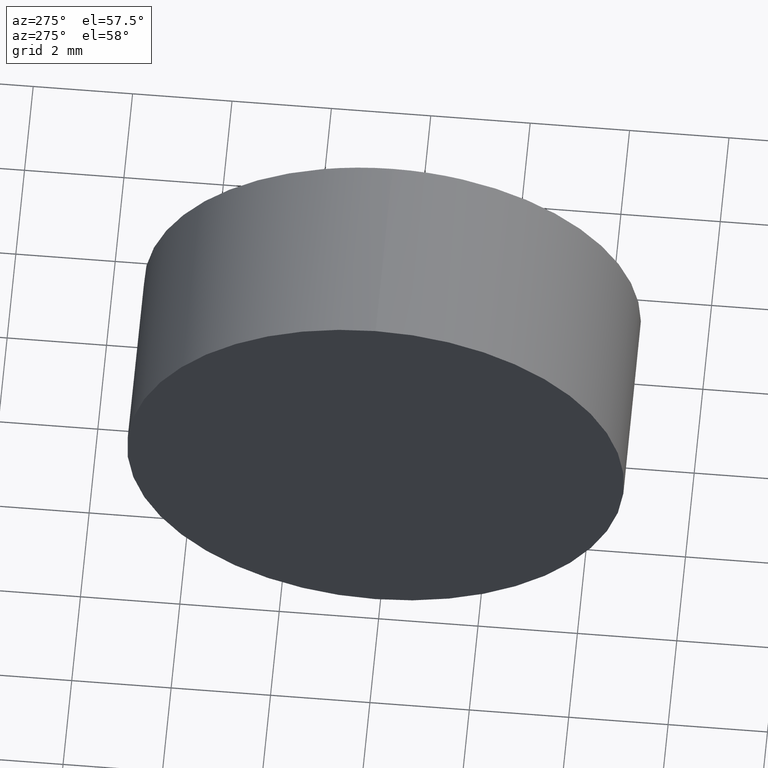
[diagram: clean part render]
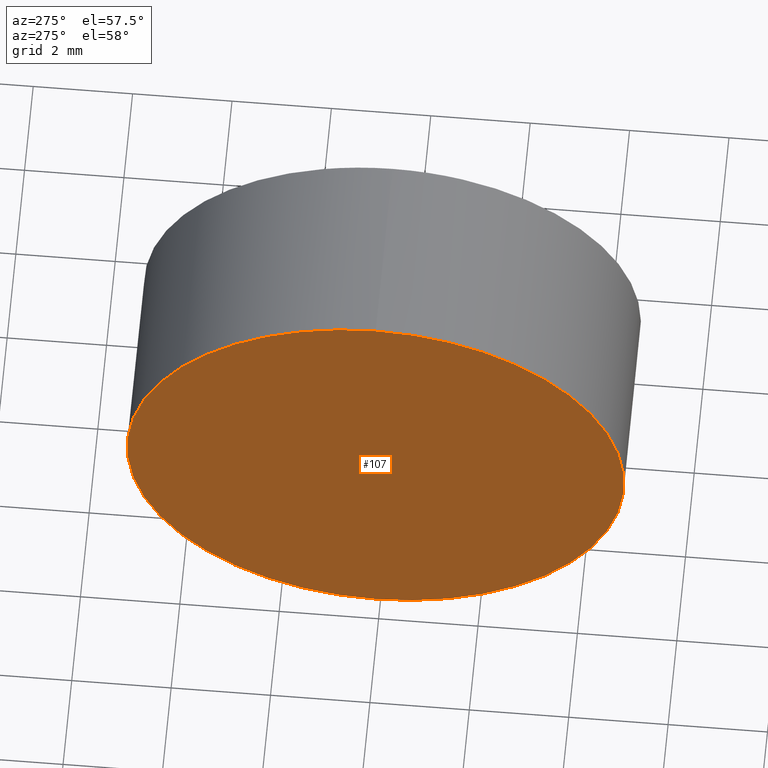
[diagram: same view with one face highlighted and labeled with its STEP entity id]
A machine part, auxiliary view. The second image highlights one B-rep face of the part: STEP entity #107.
In plain terms, the highlighted planar face has unit normal (1, 0, 0).
Its self-contained STEP definition (entity closure, byte-faithful):
#9 = VERTEX_POINT ( 'NONE', #12 ) ;
#12 = CARTESIAN_POINT ( 'NONE',  ( 44.31958549791029600, 26.08904114919495900, -5.000000000000000900 ) ) ;
#19 = EDGE_LOOP ( 'NONE', ( #111, #75 ) ) ;
#21 = AXIS2_PLACEMENT_3D ( 'NONE', #161, #148, #57 ) ;
#26 = CARTESIAN_POINT ( 'NONE',  ( 44.31958549791029600, 26.08904114919495900, 0.0000000000000000000 ) ) ;
#39 = DIRECTION ( 'NONE',  ( 0.0000000000000000000, 0.0000000000000000000, 1.000000000000000000 ) ) ;
#40 = CIRCLE ( 'NONE', #131, 5.000000000000000900 ) ;
#57 = DIRECTION ( 'NONE',  ( 0.0000000000000000000, 0.0000000000000000000, 1.000000000000000000 ) ) ;
#67 = VERTEX_POINT ( 'NONE', #118 ) ;
#72 = CARTESIAN_POINT ( 'NONE',  ( 44.31958549791029600, 26.08904114919495900, 0.0000000000000000000 ) ) ;
#74 = PLANE ( 'NONE',  #96 ) ;
#75 = ORIENTED_EDGE ( 'NONE', *, *, #155, .T. ) ;
#77 = CIRCLE ( 'NONE', #21, 5.000000000000000900 ) ;
#84 = FACE_OUTER_BOUND ( 'NONE', #19, .T. ) ;
#96 = AXIS2_PLACEMENT_3D ( 'NONE', #26, #186, #103 ) ;
#103 = DIRECTION ( 'NONE',  ( 0.0000000000000000000, 0.0000000000000000000, -1.000000000000000000 ) ) ;
#107 = ADVANCED_FACE ( 'NONE', ( #84 ), #74, .F. ) ;
#111 = ORIENTED_EDGE ( 'NONE', *, *, #143, .T. ) ;
#118 = CARTESIAN_POINT ( 'NONE',  ( 44.31958549791029600, 26.08904114919495900, 5.000000000000000900 ) ) ;
#131 = AXIS2_PLACEMENT_3D ( 'NONE', #72, #134, #39 ) ;
#134 = DIRECTION ( 'NONE',  ( -1.000000000000000000, -0.0000000000000000000, -0.0000000000000000000 ) ) ;
#143 = EDGE_CURVE ( 'NONE', #67, #9, #77, .T. ) ;
#148 = DIRECTION ( 'NONE',  ( -1.000000000000000000, -0.0000000000000000000, -0.0000000000000000000 ) ) ;
#155 = EDGE_CURVE ( 'NONE', #9, #67, #40, .T. ) ;
#161 = CARTESIAN_POINT ( 'NONE',  ( 44.31958549791029600, 26.08904114919495900, 0.0000000000000000000 ) ) ;
#186 = DIRECTION ( 'NONE',  ( 1.000000000000000000, 0.0000000000000000000, 0.0000000000000000000 ) ) ;